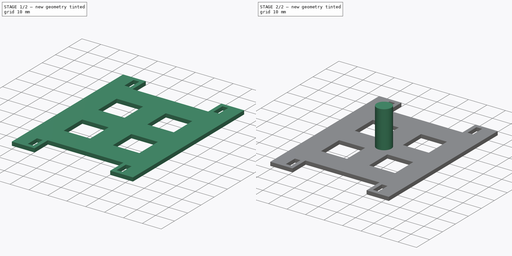
[diagram: build sequence overview — one tinted view per stage of 2, left to right]
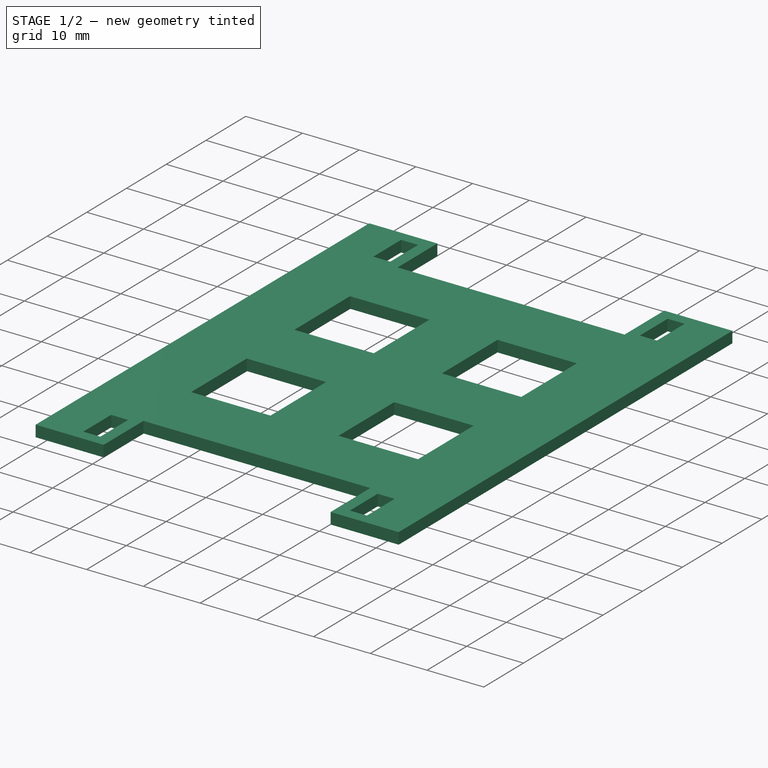
[diagram: stage 1 of 2 — iso view after this stage's code; geometry added in this stage tinted green]
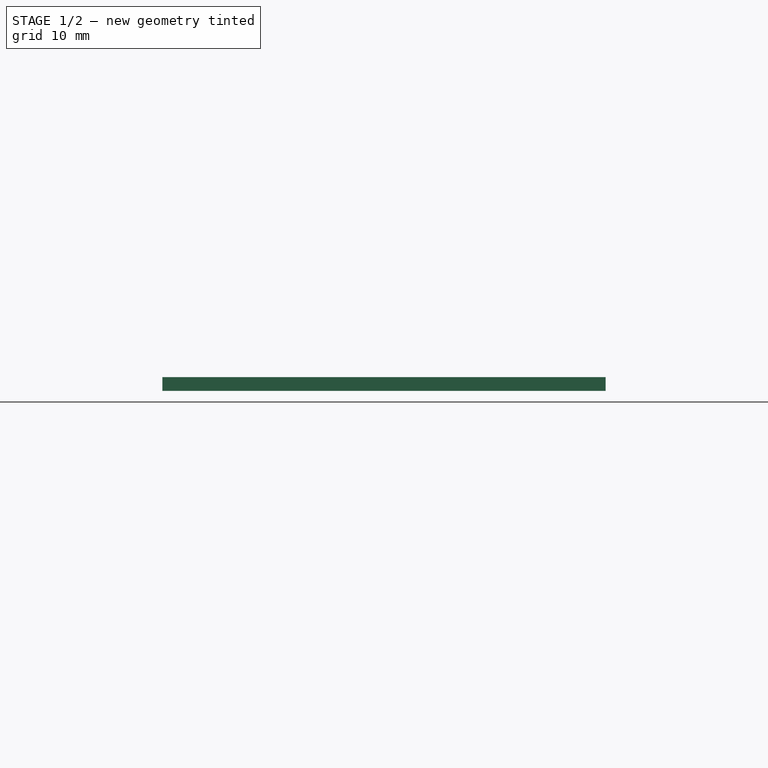
[diagram: stage 1 of 2 — front view after this stage's code; geometry added in this stage tinted green]
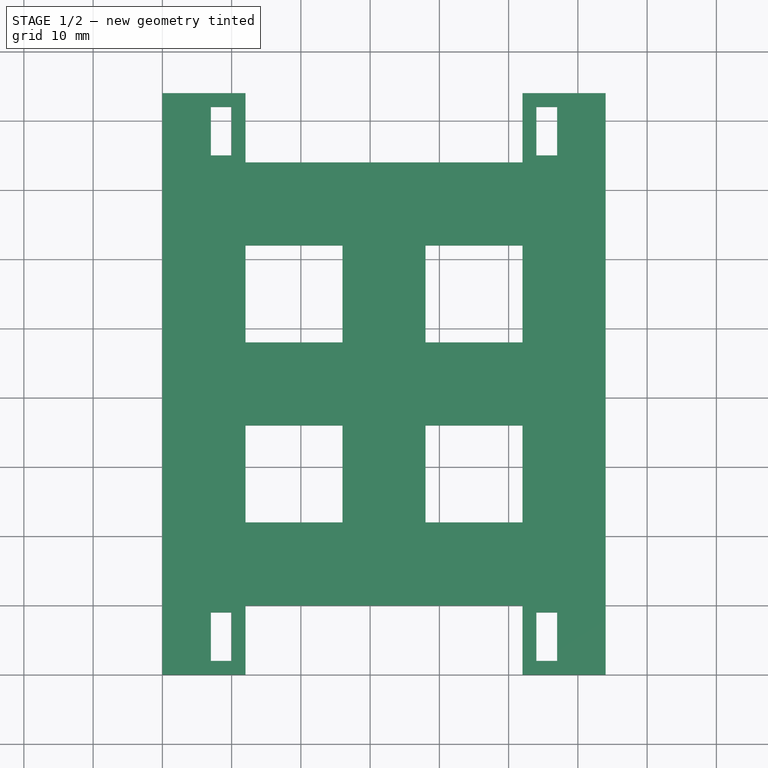
[diagram: stage 1 of 2 — top view after this stage's code; geometry added in this stage tinted green]
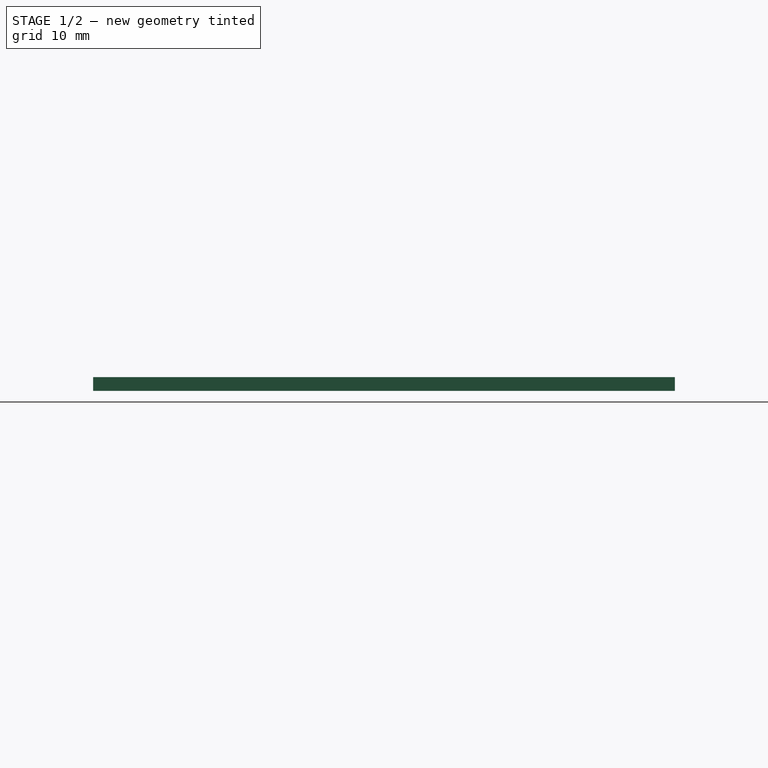
[diagram: stage 1 of 2 — right view after this stage's code; geometry added in this stage tinted green]
FCSTD DOCUMENT  (FreeCAD 0.18R16093 (Git))
Label: top V2
License: All rights reserved
LicenseURL: http://en.wikipedia.org/wiki/All_rights_reserved
objects: Sketcher::SketchObject×2, PartDesign::Pad×2, PartDesign::Body×1
note: 7 computed .brp shape members not serialized (recipe doc carries the construction recipe); baked Part::Feature solids carry a one-line shape summary decoded from their .brp

FEATURE [Sketcher::SketchObject] Sketch
  MapMode = 5
  Support = -> [XY_Plane]
  sketch-geometry (62):
    g0: LineSegment StartX=64 StartY=0 StartZ=0 EndX=64 EndY=84 EndZ=0
    g1: LineSegment StartX=0 StartY=84 StartZ=0 EndX=0 EndY=0 EndZ=0
    g2: LineSegment StartX=0 StartY=84 StartZ=0 EndX=12 EndY=84 EndZ=0
    g3: LineSegment StartX=12 StartY=84 StartZ=0 EndX=12 EndY=74 EndZ=0
    g4: LineSegment StartX=12 StartY=74 StartZ=0 EndX=52 EndY=74 EndZ=0
    g5: LineSegment StartX=52 StartY=74 StartZ=0 EndX=52 EndY=84 EndZ=0
    g6: LineSegment StartX=52 StartY=84 StartZ=0 EndX=64 EndY=84 EndZ=0
    g7: LineSegment StartX=0 StartY=0 StartZ=0 EndX=12 EndY=0 EndZ=0
    g8: LineSegment StartX=12 StartY=0 StartZ=0 EndX=12 EndY=10 EndZ=0
    g9: LineSegment StartX=12 StartY=10 StartZ=0 EndX=52 EndY=10 EndZ=0
    g10: LineSegment StartX=52 StartY=10 StartZ=0 EndX=52 EndY=0 EndZ=0
    g11: LineSegment StartX=52 StartY=0 StartZ=0 EndX=64 EndY=0 EndZ=0
    g12: LineSegment StartX=12 StartY=62 StartZ=0 EndX=26 EndY=62 EndZ=0
    g13: LineSegment StartX=26 StartY=62 StartZ=0 EndX=26 EndY=48 EndZ=0
    g14: LineSegment StartX=26 StartY=48 StartZ=0 EndX=12 EndY=48 EndZ=0
    g15: LineSegment StartX=12 StartY=48 StartZ=0 EndX=12 EndY=62 EndZ=0
    g16: LineSegment StartX=38 StartY=62 StartZ=0 EndX=52 EndY=62 EndZ=0
    g17: LineSegment StartX=52 StartY=62 StartZ=0 EndX=52 EndY=48 EndZ=0
    g18: LineSegment StartX=52 StartY=48 StartZ=0 EndX=38 EndY=48 EndZ=0
    g19: LineSegment StartX=38 StartY=48 StartZ=0 EndX=38 EndY=62 EndZ=0
    g20: LineSegment StartX=12 StartY=36 StartZ=0 EndX=26 EndY=36 EndZ=0
    g21: LineSegment StartX=26 StartY=36 StartZ=0 EndX=26 EndY=22 EndZ=0
    g22: LineSegment StartX=26 StartY=22 StartZ=0 EndX=12 EndY=22 EndZ=0
    g23: LineSegment StartX=12 StartY=22 StartZ=0 EndX=12 EndY=36 EndZ=0
    g24: LineSegment StartX=38 StartY=36 StartZ=0 EndX=52 EndY=36 EndZ=0
    g25: LineSegment StartX=52 StartY=36 StartZ=0 EndX=52 EndY=22 EndZ=0
    g26: LineSegment StartX=52 StartY=22 StartZ=0 EndX=38 EndY=22 EndZ=0
    g27: LineSegment StartX=38 StartY=22 StartZ=0 EndX=38 EndY=36 EndZ=0
    g28: LineSegment [constr] StartX=32 StartY=74 StartZ=0 EndX=32 EndY=42 EndZ=0
    g29: LineSegment [constr] StartX=32 StartY=42 StartZ=0 EndX=32 EndY=10 EndZ=0
    g30: LineSegment [constr] StartX=32 StartY=42 StartZ=0 EndX=64 EndY=42 EndZ=0
    g31: LineSegment [constr] StartX=32 StartY=42 StartZ=0 EndX=0 EndY=42 EndZ=0
    g32: LineSegment [constr] StartX=38 StartY=36 StartZ=0 EndX=38 EndY=48 EndZ=0
    g33: LineSegment [constr] StartX=38 StartY=48 StartZ=0 EndX=26 EndY=48 EndZ=0
    g34: LineSegment [constr] StartX=26 StartY=48 StartZ=0 EndX=26 EndY=36 EndZ=0
    g35: LineSegment [constr] StartX=26 StartY=36 StartZ=0 EndX=38 EndY=36 EndZ=0
    g36: Circle [constr] CenterX=32 CenterY=42 CenterZ=0 NormalX=0 NormalY=0 NormalZ=1 AngleXU=0 Radius=8.48528
    g37: LineSegment [constr] StartX=12 StartY=74 StartZ=0 EndX=12 EndY=62 EndZ=0
    g38: LineSegment StartX=7 StartY=9 StartZ=0 EndX=10 EndY=9 EndZ=0
    g39: LineSegment StartX=10 StartY=9 StartZ=0 EndX=10 EndY=2 EndZ=0
    g40: LineSegment StartX=10 StartY=2 StartZ=0 EndX=7 EndY=2 EndZ=0
    g41: LineSegment StartX=7 StartY=2 StartZ=0 EndX=7 EndY=9 EndZ=0
    g42: LineSegment StartX=54 StartY=9 StartZ=0 EndX=57 EndY=9 EndZ=0
    g43: LineSegment StartX=57 StartY=9 StartZ=0 EndX=57 EndY=2 EndZ=0
    g44: LineSegment StartX=57 StartY=2 StartZ=0 EndX=54 EndY=2 EndZ=0
    g45: LineSegment StartX=54 StartY=2 StartZ=0 EndX=54 EndY=9 EndZ=0
    g46: LineSegment StartX=54 StartY=82 StartZ=0 EndX=57 EndY=82 EndZ=0
    g47: LineSegment StartX=57 StartY=82 StartZ=0 EndX=57 EndY=75 EndZ=0
    g48: LineSegment StartX=57 StartY=75 StartZ=0 EndX=54 EndY=75 EndZ=0
    g49: LineSegment StartX=54 StartY=75 StartZ=0 EndX=54 EndY=82 EndZ=0
    g50: LineSegment StartX=7 StartY=82 StartZ=0 EndX=10 EndY=82 EndZ=0
    g51: LineSegment StartX=10 StartY=82 StartZ=0 EndX=10 EndY=75 EndZ=0
    g52: LineSegment StartX=10 StartY=75 StartZ=0 EndX=7 EndY=75 EndZ=0
    g53: LineSegment StartX=7 StartY=75 StartZ=0 EndX=7 EndY=82 EndZ=0
    g54: LineSegment [constr] StartX=10 StartY=2 StartZ=0 EndX=10 EndY=0 EndZ=0
    g55: LineSegment [constr] StartX=10 StartY=2 StartZ=0 EndX=12 EndY=2 EndZ=0
    g56: LineSegment [constr] StartX=54 StartY=2 StartZ=0 EndX=52 EndY=2 EndZ=0
    g57: LineSegment [constr] StartX=54 StartY=2 StartZ=0 EndX=54 EndY=-4e-16 EndZ=0
    g58: LineSegment [constr] StartX=54 StartY=82 StartZ=0 EndX=54 EndY=84 EndZ=0
    g59: LineSegment [constr] StartX=54 StartY=82 StartZ=0 EndX=52 EndY=82 EndZ=0
    g60: LineSegment [constr] StartX=10 StartY=82 StartZ=0 EndX=10 EndY=84 EndZ=0
    g61: LineSegment [constr] StartX=10 StartY=82 StartZ=0 EndX=12 EndY=82 EndZ=0
  constraints (181):
    c: Vertical(g0)
    c: Vertical(g1)
    c: Distance(g1) = 84
    c: DistanceX(g1,g0) = 64
    c: Coincident(g2,g3)
    c: Coincident(g3,g4)
    c: Coincident(g4,g5)
    c: Coincident(g5,g6)
    c: Horizontal(g6)
    c: Horizontal(g4)
    c: Horizontal(g2)
    c: Vertical(g3)
    c: Vertical(g5)
    c: Equal(g6,g2)
    c: Coincident(g7,g8)
    c: Coincident(g8,g9)
    c: Coincident(g9,g10)
    c: Coincident(g10,g11)
    c: Horizontal(g11)
    c: Horizontal(g9)
    c: Horizontal(g7)
    c: Vertical(g8)
    c: Equal(g11,g7)
    c: Equal(g10,g8)
    c: Equal(g9,g4)
    c: Equal(g6,g11)
    c: Equal(g10,g5)
    c: Equal(g5,g3)
    c: Coincident(g7,g1)
    c: Coincident(g1,g-1)
    c: Coincident(g11,g0)
    c: Coincident(g6,g0)
    c: Coincident(g2,g1)
    c: DistanceX(g11,g11) = 12
    c: DistanceY(g10,g10) = 10
    c: Coincident(g12,g13)
    c: Coincident(g13,g14)
    c: Coincident(g14,g15)
    c: Coincident(g15,g12)
    c: Horizontal(g12)
    c: Horizontal(g14)
    c: Vertical(g13)
    c: Vertical(g15)
    c: Coincident(g16,g17)
    c: Coincident(g17,g18)
    c: Coincident(g18,g19)
    c: Coincident(g19,g16)
    c: Horizontal(g16)
    c: Horizontal(g18)
    c: Vertical(g17)
    c: Vertical(g19)
    c: Coincident(g20,g21)
    c: Coincident(g21,g22)
    c: Coincident(g22,g23)
    c: Coincident(g23,g20)
    c: Horizontal(g20)
    c: Horizontal(g22)
    c: Vertical(g21)
    c: Vertical(g23)
    c: Coincident(g24,g25)
    c: Coincident(g25,g26)
    c: Coincident(g26,g27)
    c: Coincident(g27,g24)
    c: Horizontal(g24)
    c: Horizontal(g26)
    c: Vertical(g25)
    c: Vertical(g27)
    c: Equal(g24,g18)
    c: Equal(g18,g14)
    c: Equal(g14,g20)
    c: Equal(g13,g19)
    c: Equal(g19,g21)
    c: Equal(g21,g27)
    c: Horizontal(g30)
    c: Vertical(g28)
    c: Vertical(g29)
    c: Horizontal(g31)
    c: Coincident(g28,g29)
    c: Coincident(g28,g30)
    c: Coincident(g28,g31)
    c: PointOnObject(g30,g0)
    c: PointOnObject(g28,g4)
    c: PointOnObject(g31,g1)
    c: PointOnObject(g29,g9)
    c: Equal(g29,g28)
    c: Equal(g31,g30)
    c: Coincident(g32,g33)
    c: Coincident(g33,g34)
    c: Coincident(g34,g35)
    c: Coincident(g35,g32)
    c: Equal(g32,g33)
    c: Equal(g32,g34)
    c: Equal(g32,g35)
    c: PointOnObject(g32,g36)
    c: PointOnObject(g33,g36)
    c: PointOnObject(g34,g36)
    c: PointOnObject(g35,g36)
    c: Vertical(g32)
    c: Coincident(g36,g28)
    c: Coincident(g32,g18)
    c: Coincident(g32,g24)
    c: Coincident(g34,g20)
    c: Coincident(g33,g13)
    c: Equal(g33,g32)
    c: Distance(g33) = 12
    c: Vertical(g37)
    c: Coincident(g37,g12)
    c: Coincident(g37,g3)
    c: DistanceY(g37,g37) = 12
    c: Coincident(g38,g39)
    c: Coincident(g39,g40)
    c: Coincident(g40,g41)
    c: Coincident(g41,g38)
    c: Horizontal(g38)
    c: Horizontal(g40)
    c: Vertical(g39)
    c: Vertical(g41)
    c: Coincident(g42,g43)
    c: Coincident(g43,g44)
    c: Coincident(g44,g45)
    c: Coincident(g45,g42)
    c: Horizontal(g42)
    c: Horizontal(g44)
    c: Vertical(g43)
    c: Vertical(g45)
    c: Coincident(g46,g47)
    c: Coincident(g47,g48)
    c: Coincident(g48,g49)
    c: Coincident(g49,g46)
    c: Horizontal(g46)
    c: Horizontal(g48)
    c: Vertical(g47)
    c: Vertical(g49)
    c: Coincident(g50,g51)
    c: Coincident(g51,g52)
    c: Coincident(g52,g53)
    c: Coincident(g53,g50)
    c: Horizontal(g50)
    c: Horizontal(g52)
    c: Vertical(g51)
    c: Vertical(g53)
    c: Equal(g50,g46)
    c: Equal(g46,g42)
    c: Equal(g42,g38)
    c: Equal(g43,g39)
    c: Equal(g39,g47)
    c: Equal(g47,g51)
    c: Coincident(g54,g39)
    c: PointOnObject(g54,g7)
    c: Vertical(g54)
    c: Coincident(g55,g39)
    c: PointOnObject(g55,g8)
    c: Horizontal(g55)
    c: DistanceY(g54,g54) = 2
    c: DistanceX(g55,g55) = 2
    c: DistanceY(g39,g39) = 7
    c: DistanceX(g38,g38) = 3
    c: PointOnObject(g56,g10)
    c: Horizontal(g56)
    c: Coincident(g57,g44)
    c: PointOnObject(g57,g11)
    c: Vertical(g57)
    c: Coincident(g58,g46)
    c: PointOnObject(g58,g6)
    c: Vertical(g58)
    c: Coincident(g59,g46)
    c: PointOnObject(g59,g5)
    c: Horizontal(g59)
    c: Coincident(g60,g50)
    c: PointOnObject(g60,g2)
    c: Vertical(g60)
    c: Coincident(g61,g50)
    c: PointOnObject(g61,g3)
    c: Horizontal(g61)
    c: Equal(g61,g59)
    c: Equal(g59,g56)
    c: Equal(g56,g55)
    c: Equal(g54,g57)
    c: Equal(g57,g58)
    c: Equal(g58,g60)
    c: Coincident(g56,g44)
FEATURE [PartDesign::Pad] Pad
  Length = 2
  Length2 = 100
  Profile = -> Sketch
  Type = 0
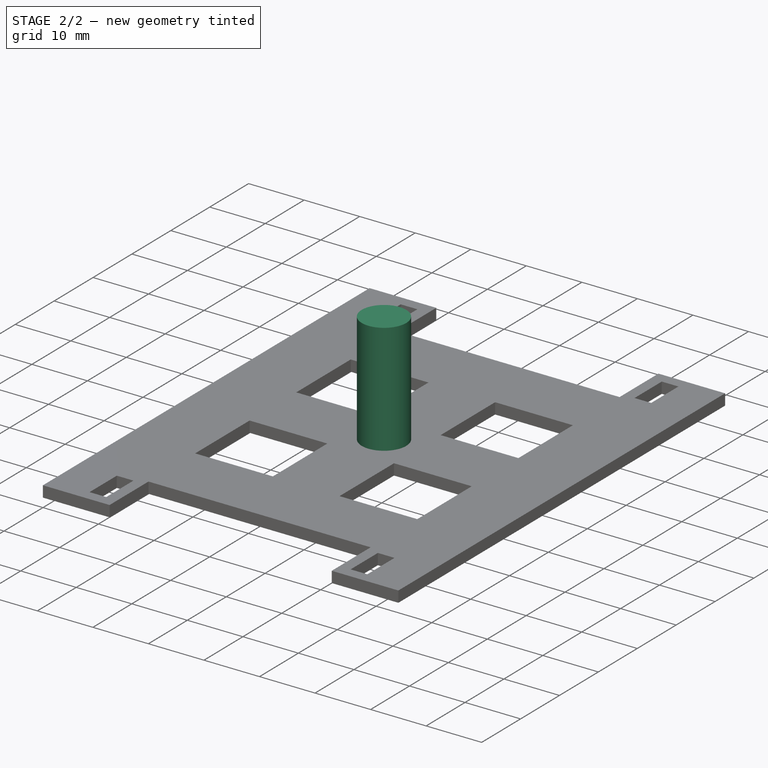
[diagram: stage 2 of 2 — iso view after this stage's code; geometry added in this stage tinted green]
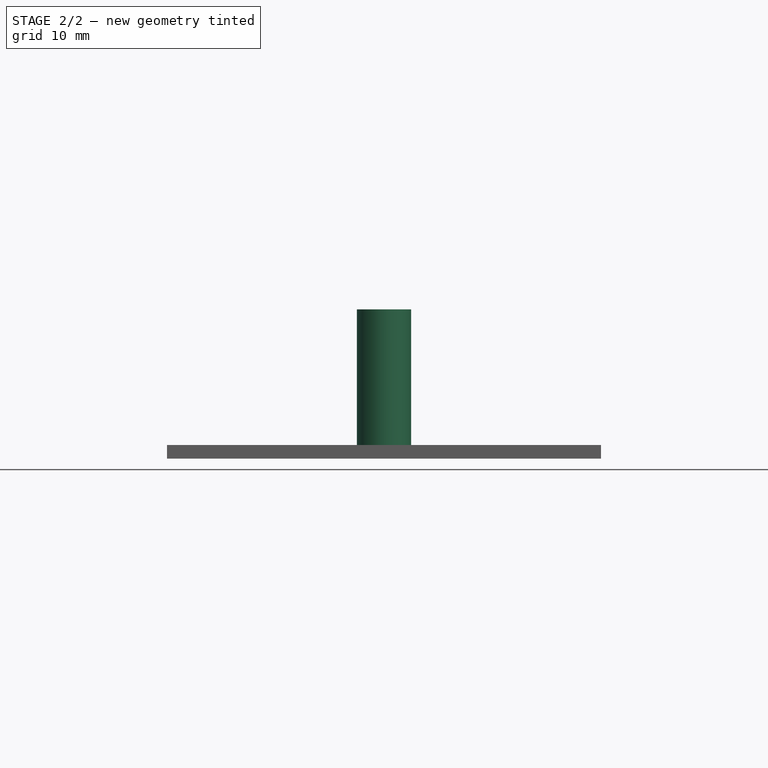
[diagram: stage 2 of 2 — front view after this stage's code; geometry added in this stage tinted green]
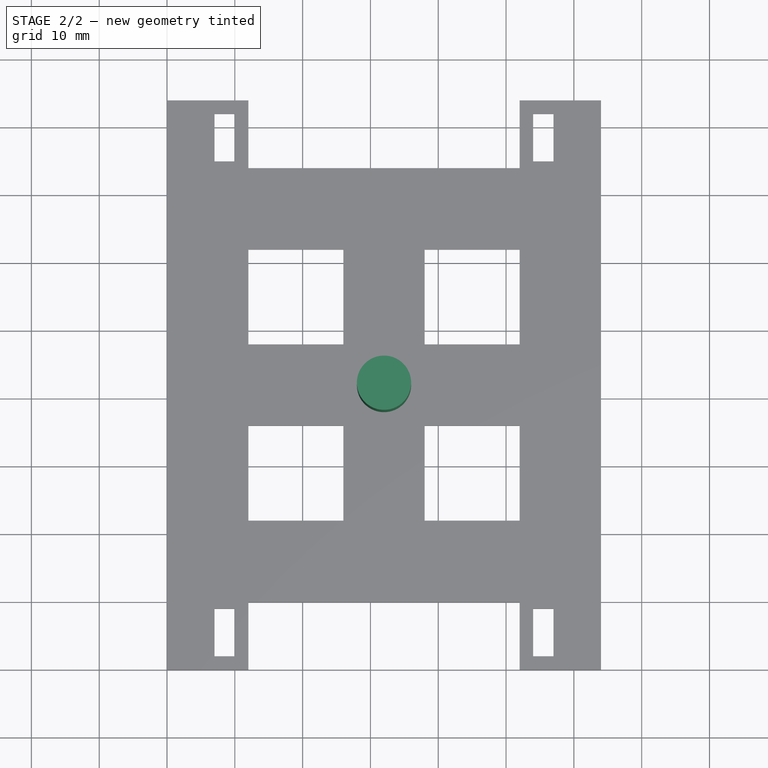
[diagram: stage 2 of 2 — top view after this stage's code; geometry added in this stage tinted green]
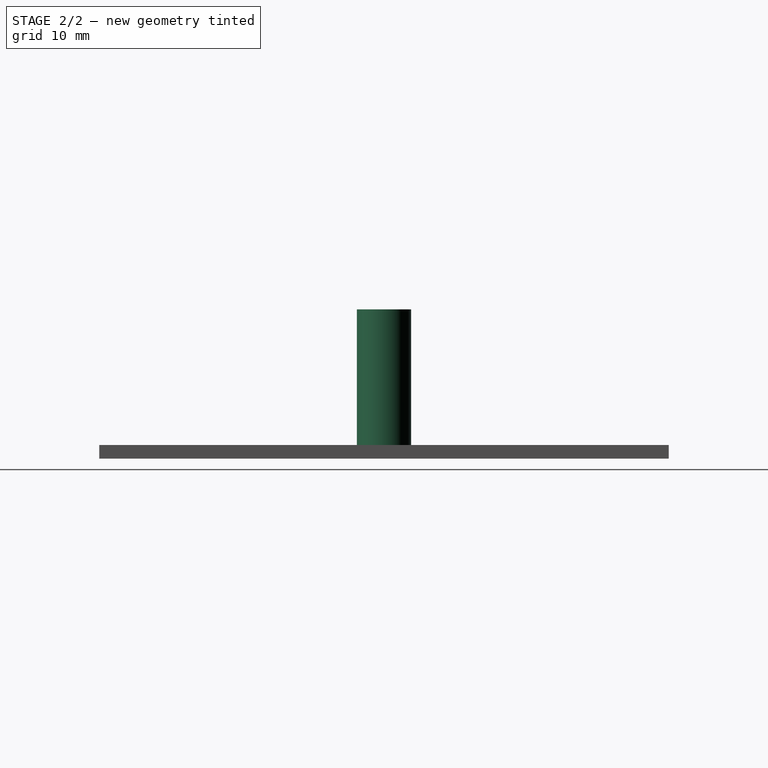
[diagram: stage 2 of 2 — right view after this stage's code; geometry added in this stage tinted green]
FEATURE [Sketcher::SketchObject] Sketch006
  MapMode = 5
  Placement = pos=(0,0,2) rot=(0,0,1;0rad)
  sketch-geometry (3):
    g0: Circle CenterX=32 CenterY=42 CenterZ=0 NormalX=0 NormalY=0 NormalZ=1 AngleXU=0 Radius=4
    g1: LineSegment [constr] StartX=32 StartY=42 StartZ=0 EndX=32 EndY=0 EndZ=0
    g2: LineSegment [constr] StartX=32 StartY=0 StartZ=0 EndX=0 EndY=0 EndZ=0
  constraints (8):
    c: Radius(g0) = 4
    c: Coincident(g1,g2)
    c: Vertical(g1)
    c: Horizontal(g2)
    c: Coincident(g2,g-1)
    c: DistanceX(g2,g2) = 32
    c: Coincident(g1,g0)
    c: DistanceY(g1,g1) = 42
FEATURE [PartDesign::Pad] Pad001
  BaseFeature = -> Pad
  Length = 20
  Length2 = 100
  Profile = -> Sketch006
  Type = 0
FEATURE [PartDesign::Body] Body
  Group = -> [Sketch,Pad,Sketch006,Pad001]
  Origin = -> Origin
  Tip = -> Pad001
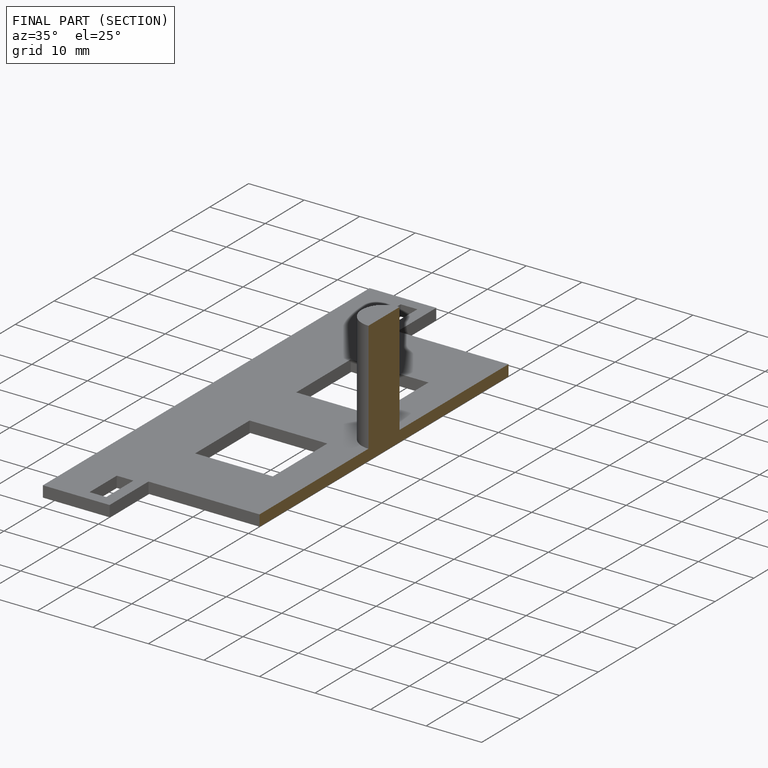
[diagram: finished part — half-section view (interior)]
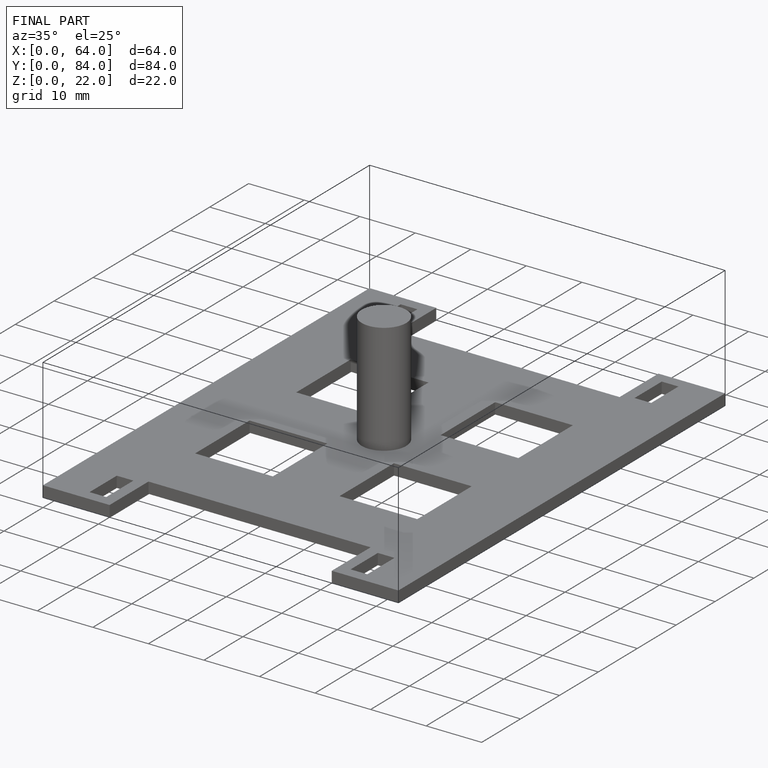
[diagram: finished part — iso view with bounding-box wireframe]
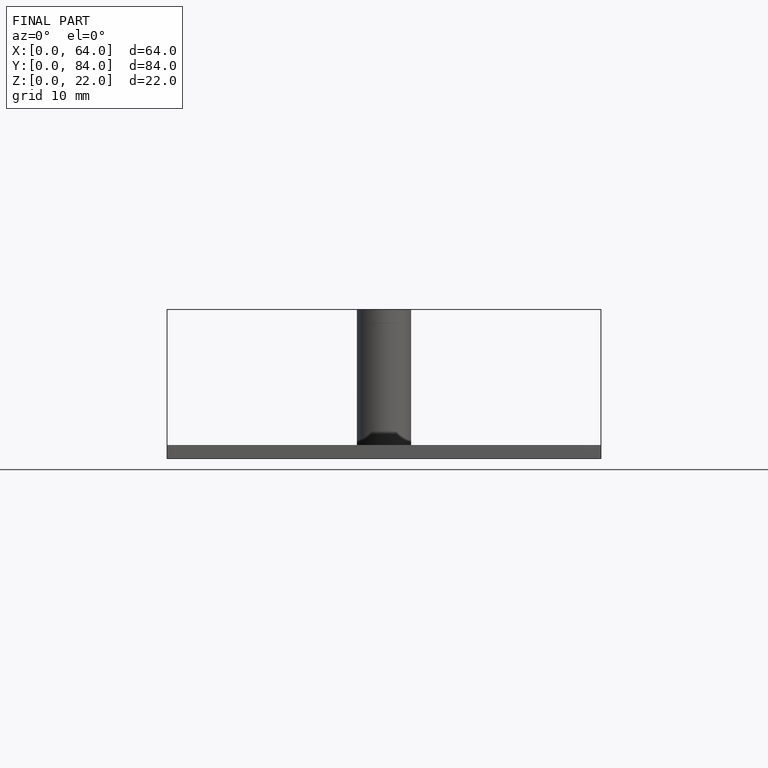
[diagram: finished part — front view with bounding-box wireframe]
